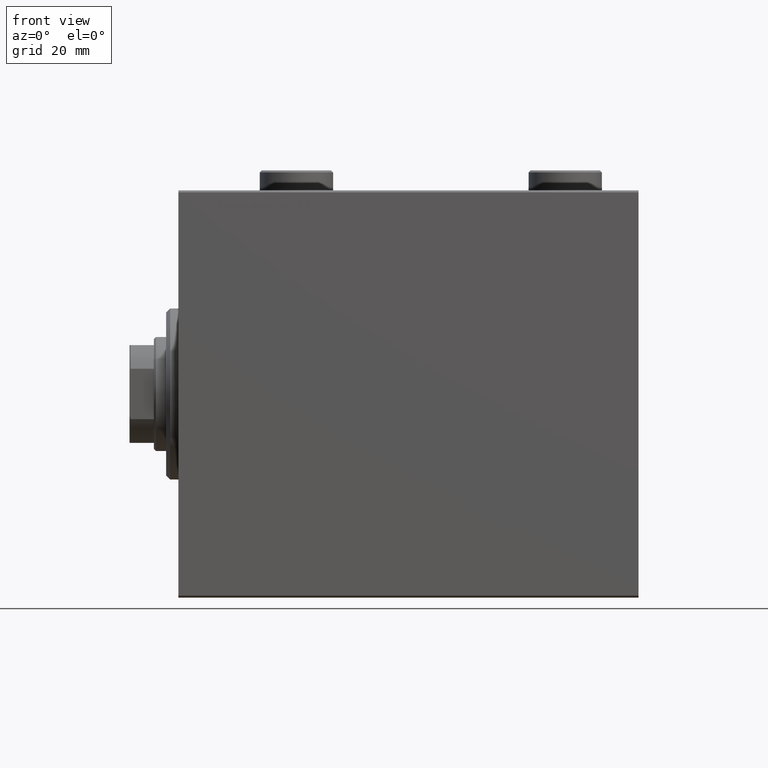
[diagram: clean part render]
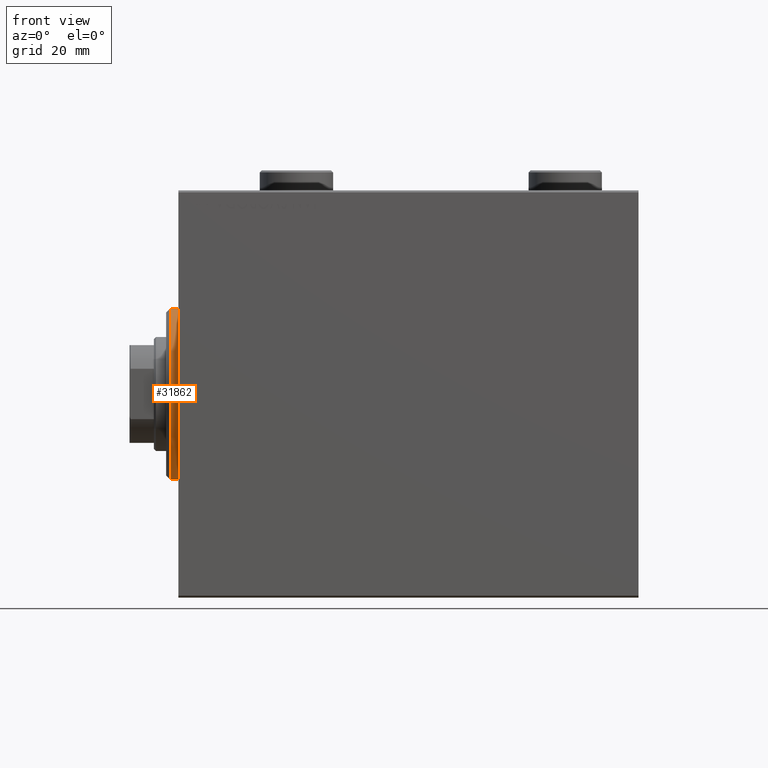
[diagram: same view with one face highlighted and labeled with its STEP entity id]
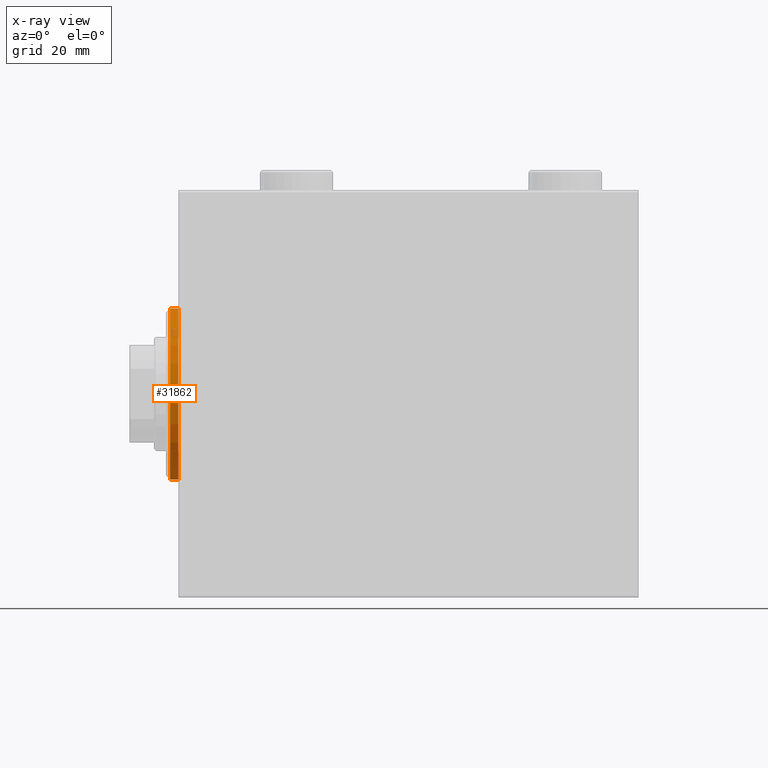
[diagram: x-ray of the same camera — body ghosted, the highlighted face saturated]
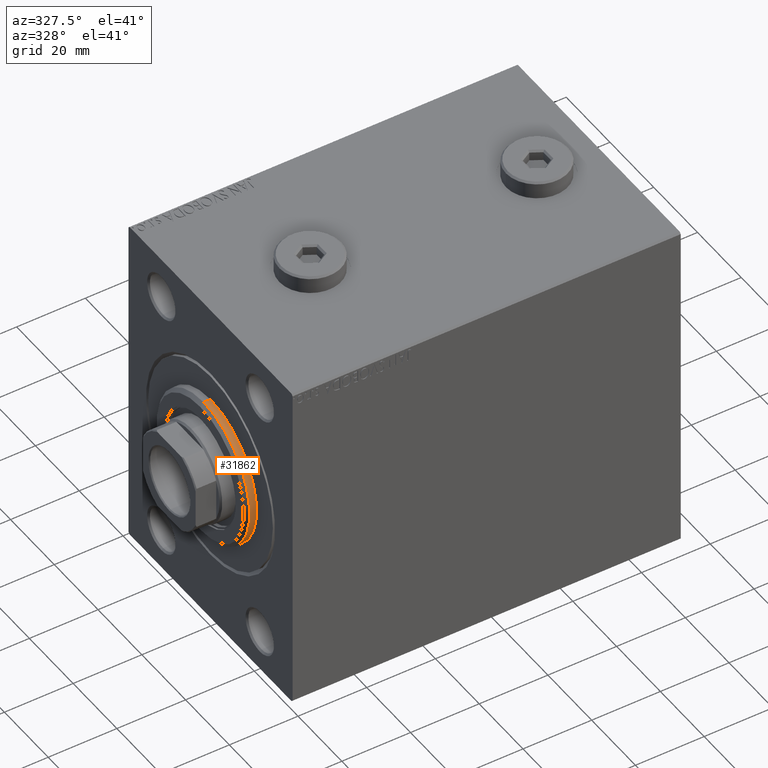
[diagram: same view with one face highlighted and labeled with its STEP entity id]
A machine part, front view. The second image highlights one B-rep face of the part: STEP entity #31862.
The next image is the same camera in x-ray: the body ghosted, the highlighted face saturated — about 0% of this face is hidden behind the body in this view.
A second angle (auxiliary view) of the same face is appended — the face is thin or edge-on in the first view.
In plain terms, the highlighted cylindrical surface (partial cylindrical patch) has radius 21 mm, axis along (1, -0, -0).
Its self-contained STEP definition (entity closure, byte-faithful):
#1779 = CARTESIAN_POINT ( 'NONE',  ( 3.000000000000000000, 2.571758278209441661E-15, -21.00000000000000000 ) ) ;
#2007 = CARTESIAN_POINT ( 'NONE',  ( 1.999999999999995781, 0.000000000000000000, 21.00000000000000000 ) ) ;
#2094 = LINE ( 'NONE', #37905, #26210 ) ;
#2585 = VERTEX_POINT ( 'NONE', #2007 ) ;
#2766 = VERTEX_POINT ( 'NONE', #44013 ) ;
#2994 = DIRECTION ( 'NONE',  ( -1.000000000000000000, -0.000000000000000000, -0.000000000000000000 ) ) ;
#3732 = FACE_OUTER_BOUND ( 'NONE', #37081, .T. ) ;
#6794 = EDGE_CURVE ( 'NONE', #2585, #11268, #2094, .T. ) ;
#6940 = DIRECTION ( 'NONE',  ( 1.000000000000000000, -0.000000000000000000, 0.000000000000000000 ) ) ;
#7204 = DIRECTION ( 'NONE',  ( -1.000000000000000000, -0.000000000000000000, -0.000000000000000000 ) ) ;
#7236 = ORIENTED_EDGE ( 'NONE', *, *, #6794, .F. ) ;
#11268 = VERTEX_POINT ( 'NONE', #27736 ) ;
#11792 = ORIENTED_EDGE ( 'NONE', *, *, #44479, .T. ) ;
#15872 = DIRECTION ( 'NONE',  ( -1.000000000000000000, -0.000000000000000000, -0.000000000000000000 ) ) ;
#18361 = VERTEX_POINT ( 'NONE', #32177 ) ;
#20318 = EDGE_CURVE ( 'NONE', #2766, #18361, #33915, .T. ) ;
#20392 = DIRECTION ( 'NONE',  ( 0.000000000000000000, 0.000000000000000000, -1.000000000000000000 ) ) ;
#20826 = DIRECTION ( 'NONE',  ( 0.000000000000000000, 0.000000000000000000, -1.000000000000000000 ) ) ;
#21092 = DIRECTION ( 'NONE',  ( 0.000000000000000000, 0.000000000000000000, 1.000000000000000000 ) ) ;
#23452 = ORIENTED_EDGE ( 'NONE', *, *, #24078, .T. ) ;
#24078 = EDGE_CURVE ( 'NONE', #2585, #2766, #27463, .T. ) ;
#24316 = CARTESIAN_POINT ( 'NONE',  ( 1.999999999999995781, 0.000000000000000000, 0.000000000000000000 ) ) ;
#25015 = CYLINDRICAL_SURFACE ( 'NONE', #26207, 21.00000000000000000 ) ;
#26207 = AXIS2_PLACEMENT_3D ( 'NONE', #27393, #7204, #21092 ) ;
#26210 = VECTOR ( 'NONE', #2994, 1000.000000000000000 ) ;
#27393 = CARTESIAN_POINT ( 'NONE',  ( 3.000000000000000000, 0.000000000000000000, 0.000000000000000000 ) ) ;
#27463 = CIRCLE ( 'NONE', #29676, 21.00000000000000000 ) ;
#27736 = CARTESIAN_POINT ( 'NONE',  ( 0.000000000000000000, 0.000000000000000000, 21.00000000000000000 ) ) ;
#29676 = AXIS2_PLACEMENT_3D ( 'NONE', #24316, #38413, #20392 ) ;
#31220 = CARTESIAN_POINT ( 'NONE',  ( 0.000000000000000000, 0.000000000000000000, 0.000000000000000000 ) ) ;
#31862 = ADVANCED_FACE ( 'NONE', ( #3732 ), #25015, .T. ) ;
#32177 = CARTESIAN_POINT ( 'NONE',  ( 0.000000000000000000, 2.571758278209441661E-15, -21.00000000000000000 ) ) ;
#33839 = AXIS2_PLACEMENT_3D ( 'NONE', #31220, #6940, #20826 ) ;
#33915 = LINE ( 'NONE', #1779, #39122 ) ;
#37081 = EDGE_LOOP ( 'NONE', ( #23452, #42104, #11792, #7236 ) ) ;
#37905 = CARTESIAN_POINT ( 'NONE',  ( 3.000000000000000000, 0.000000000000000000, 21.00000000000000000 ) ) ;
#38258 = CIRCLE ( 'NONE', #33839, 21.00000000000000000 ) ;
#38413 = DIRECTION ( 'NONE',  ( -1.000000000000000000, 0.000000000000000000, 0.000000000000000000 ) ) ;
#39122 = VECTOR ( 'NONE', #15872, 1000.000000000000000 ) ;
#42104 = ORIENTED_EDGE ( 'NONE', *, *, #20318, .T. ) ;
#44013 = CARTESIAN_POINT ( 'NONE',  ( 1.999999999999995781, 2.571758278209441661E-15, -21.00000000000000000 ) ) ;
#44479 = EDGE_CURVE ( 'NONE', #18361, #11268, #38258, .T. ) ;